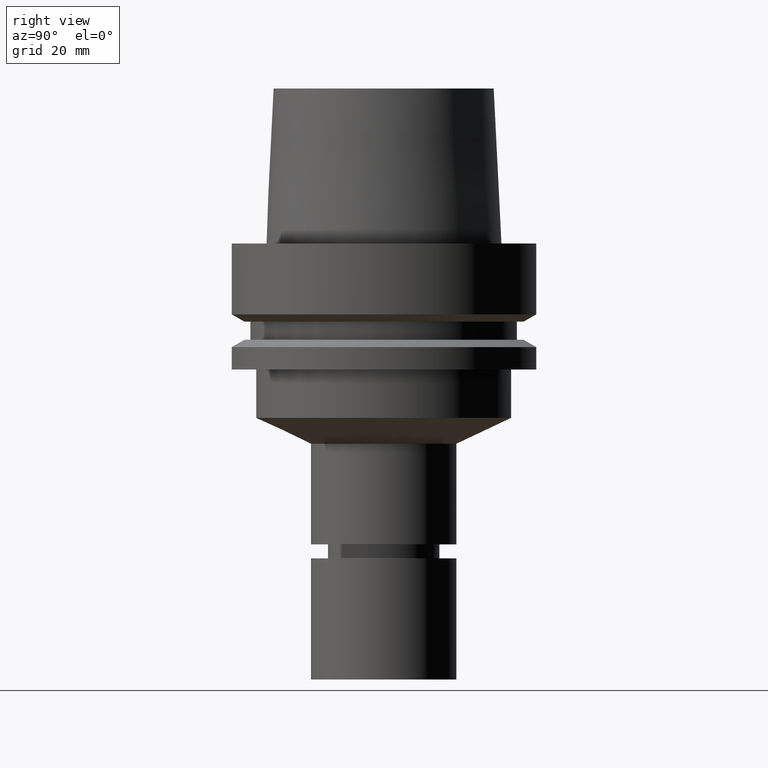
[diagram: clean part render]
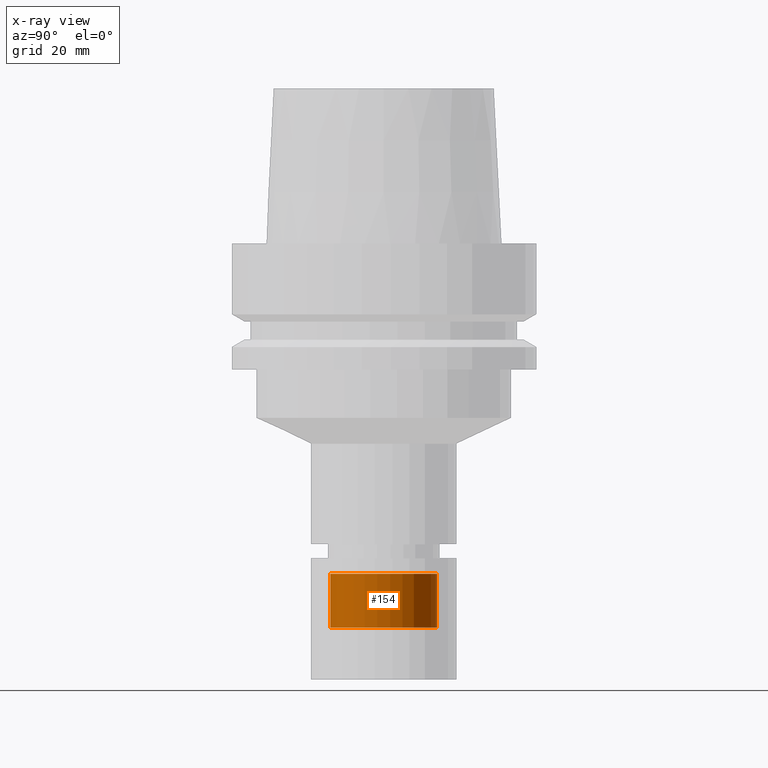
[diagram: x-ray — body ghosted, one internal face saturated and labeled with its STEP entity id]
A machine part, right view, then the same camera in x-ray: the body is ghosted and one INTERNAL B-rep face — a face not visible from any outside direction — is saturated and labeled: STEP entity #154.
In plain terms, the highlighted cylindrical surface (bore or boss wall) has radius 11 mm, axis along (-0, -0, 1).
Its self-contained STEP definition (entity closure, byte-faithful):
#84=EDGE_CURVE('Unnamed[1]',#223,#223,#224,.T.);
#154=ADVANCED_FACE('Unnamed[1]',(#329,#330),#331,.T.);
#156=EDGE_CURVE('Unnamed[1]',#333,#333,#334,.T.);
#223=VERTEX_POINT('',#417);
#224=CIRCLE('',#418,10.9999999999999);
#329=FACE_BOUND('',#548,.T.);
#330=FACE_BOUND('',#549,.T.);
#331=CYLINDRICAL_SURFACE('',#550,11.0000000000001);
#333=VERTEX_POINT('',#553);
#334=CIRCLE('',#554,11.0000000000003);
#417=CARTESIAN_POINT('',(4.17604558509238E-015,10.9999999999999,-68.1999999999985));
#418=AXIS2_PLACEMENT_3D('',#639,#640,#641);
#548=EDGE_LOOP('',(#754));
#549=EDGE_LOOP('',(#755));
#550=AXIS2_PLACEMENT_3D('',#756,#757,#758);
#553=CARTESIAN_POINT('',(4.85540272827837E-015,11.0000000000003,-79.2947441116719));
#554=AXIS2_PLACEMENT_3D('',#759,#760,#761);
#639=CARTESIAN_POINT('',(4.17604558509238E-015,8.35209117018476E-015,-68.1999999999985));
#640=DIRECTION('',(-6.12323399573676E-017,-1.22464679914735E-016,1.0));
#641=DIRECTION('',(-1.23259516440783E-032,1.0,1.22464679914735E-016));
#754=ORIENTED_EDGE('',*,*,#84,.F.);
#755=ORIENTED_EDGE('',*,*,#156,.T.);
#756=CARTESIAN_POINT('',(4.51572415668538E-015,9.03144831337075E-015,-73.7473720558352));
#757=DIRECTION('',(-6.12323399573677E-017,-1.22464679914735E-016,1.0));
#758=DIRECTION('',(-1.23259516440783E-032,1.0,1.22464679914735E-016));
#759=CARTESIAN_POINT('',(4.85540272827837E-015,9.71080545655675E-015,-79.2947441116719));
#760=DIRECTION('',(-6.12323399573676E-017,-1.22464679914735E-016,1.0));
#761=DIRECTION('',(-1.23259516440783E-032,1.0,1.22464679914735E-016));